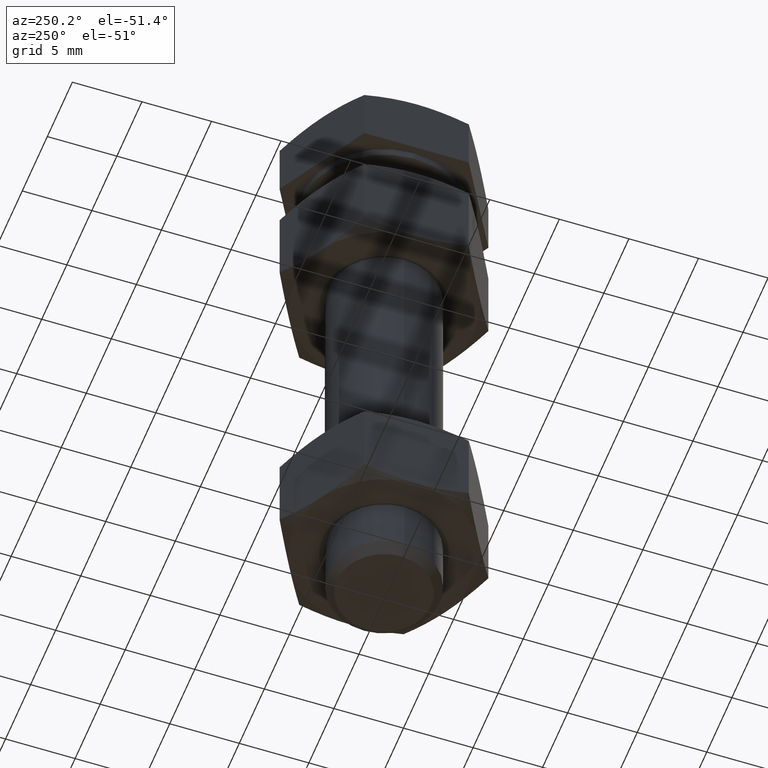
[diagram: clean part render]
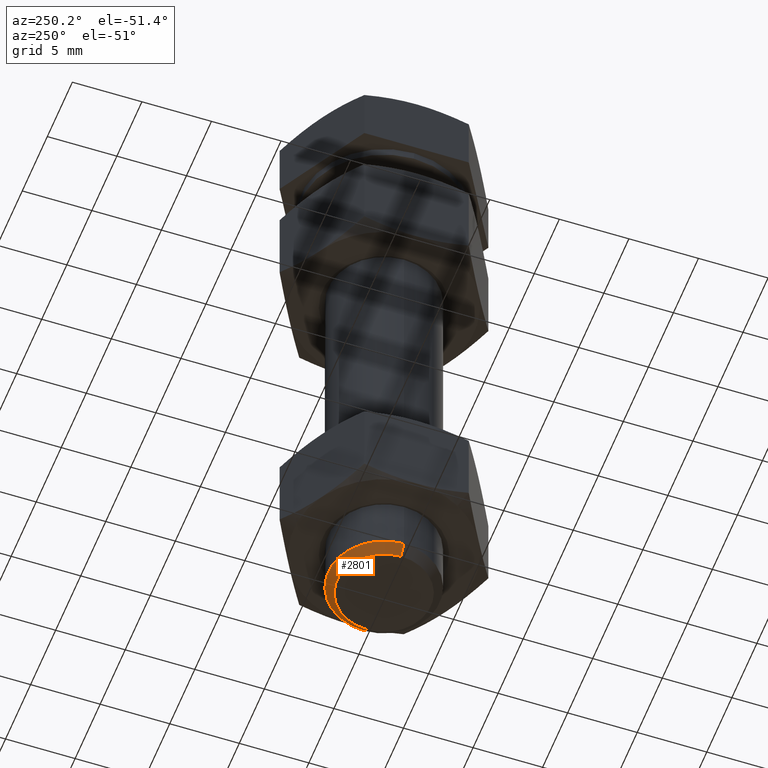
[diagram: same view with one face highlighted and labeled with its STEP entity id]
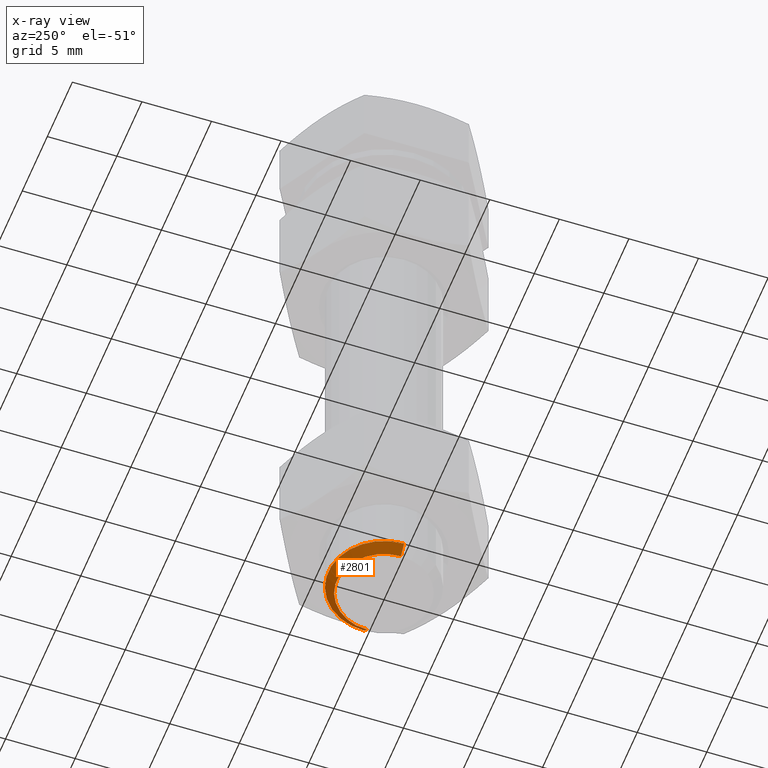
[diagram: x-ray of the same camera — body ghosted, the highlighted face saturated]
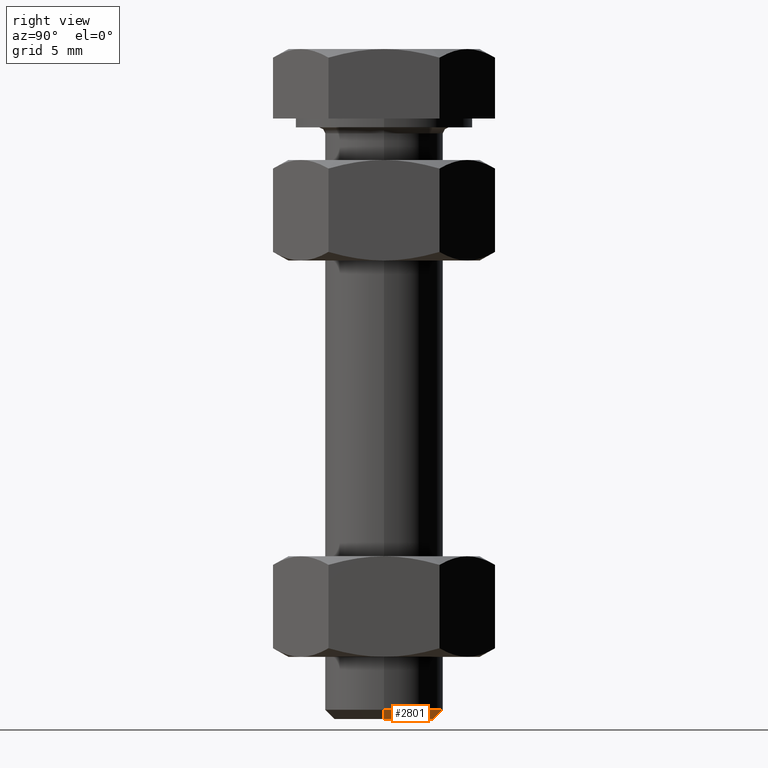
[diagram: same view with one face highlighted and labeled with its STEP entity id]
A machine part, auxiliary view. The second image highlights one B-rep face of the part: STEP entity #2801.
The next image is the same camera in x-ray: the body ghosted, the highlighted face saturated — about 0% of this face is hidden behind the body in this view.
A second angle (right view) of the same face is appended — the face is thin or edge-on in the first view.
In plain terms, the highlighted conical surface has half-angle 45 deg.
Its self-contained STEP definition (entity closure, byte-faithful):
#49=CARTESIAN_POINT('',(-3.375000000000000,4.133046E-016,-40.0));
#50=VERTEX_POINT('',#49);
#51=CARTESIAN_POINT('',(-4.0,-4.898425E-016,-39.375000000000000));
#52=VERTEX_POINT('',#51);
#53=CARTESIAN_POINT('',(-3.375000000000000,4.133046E-016,-40.0));
#54=DIRECTION('',(-0.707106781186547,-1.021794E-015,0.707106781186547));
#55=VECTOR('',#54,0.883883476483184);
#56=LINE('',#53,#55);
#57=EDGE_CURVE('',#50,#52,#56,.T.);
#59=CARTESIAN_POINT('',(3.375000000000000,4.133046E-016,-40.0));
#60=VERTEX_POINT('',#59);
#68=CARTESIAN_POINT('',(4.0,-4.898425E-016,-39.375000000000000));
#69=VERTEX_POINT('',#68);
#70=CARTESIAN_POINT('',(4.0,-4.898425E-016,-39.375000000000000));
#71=DIRECTION('',(-0.707106781186547,1.021794E-015,-0.707106781186547));
#72=VECTOR('',#71,0.883883476483184);
#73=LINE('',#70,#72);
#74=EDGE_CURVE('',#69,#60,#73,.T.);
#236=CARTESIAN_POINT('',(0.0,0.0,-39.375000000000000));
#237=DIRECTION('',(0.0,0.0,-1.0));
#238=DIRECTION('',(-1.0,0.0,0.0));
#239=AXIS2_PLACEMENT_3D('',#236,#237,#238);
#240=CIRCLE('',#239,4.0);
#241=EDGE_CURVE('',#52,#69,#240,.T.);
#2784=CARTESIAN_POINT('',(0.0,0.0,-39.687500000000000));
#2785=DIRECTION('',(0.0,0.0,1.0));
#2786=DIRECTION('',(-1.0,0.0,0.0));
#2787=AXIS2_PLACEMENT_3D('',#2784,#2785,#2786);
#2788=CONICAL_SURFACE('',#2787,3.687500000000000,45.0);
#2789=ORIENTED_EDGE('',*,*,#57,.T.);
#2790=ORIENTED_EDGE('',*,*,#241,.T.);
#2791=ORIENTED_EDGE('',*,*,#74,.T.);
#2792=CARTESIAN_POINT('',(0.0,0.0,-40.0));
#2793=DIRECTION('',(0.0,0.0,1.0));
#2794=DIRECTION('',(-1.0,0.0,0.0));
#2795=AXIS2_PLACEMENT_3D('',#2792,#2793,#2794);
#2796=CIRCLE('',#2795,3.375000000000000);
#2797=EDGE_CURVE('',#60,#50,#2796,.T.);
#2798=ORIENTED_EDGE('',*,*,#2797,.T.);
#2799=EDGE_LOOP('',(#2789,#2790,#2791,#2798));
#2800=FACE_OUTER_BOUND('',#2799,.T.);
#2801=ADVANCED_FACE('',(#2800),#2788,.T.);